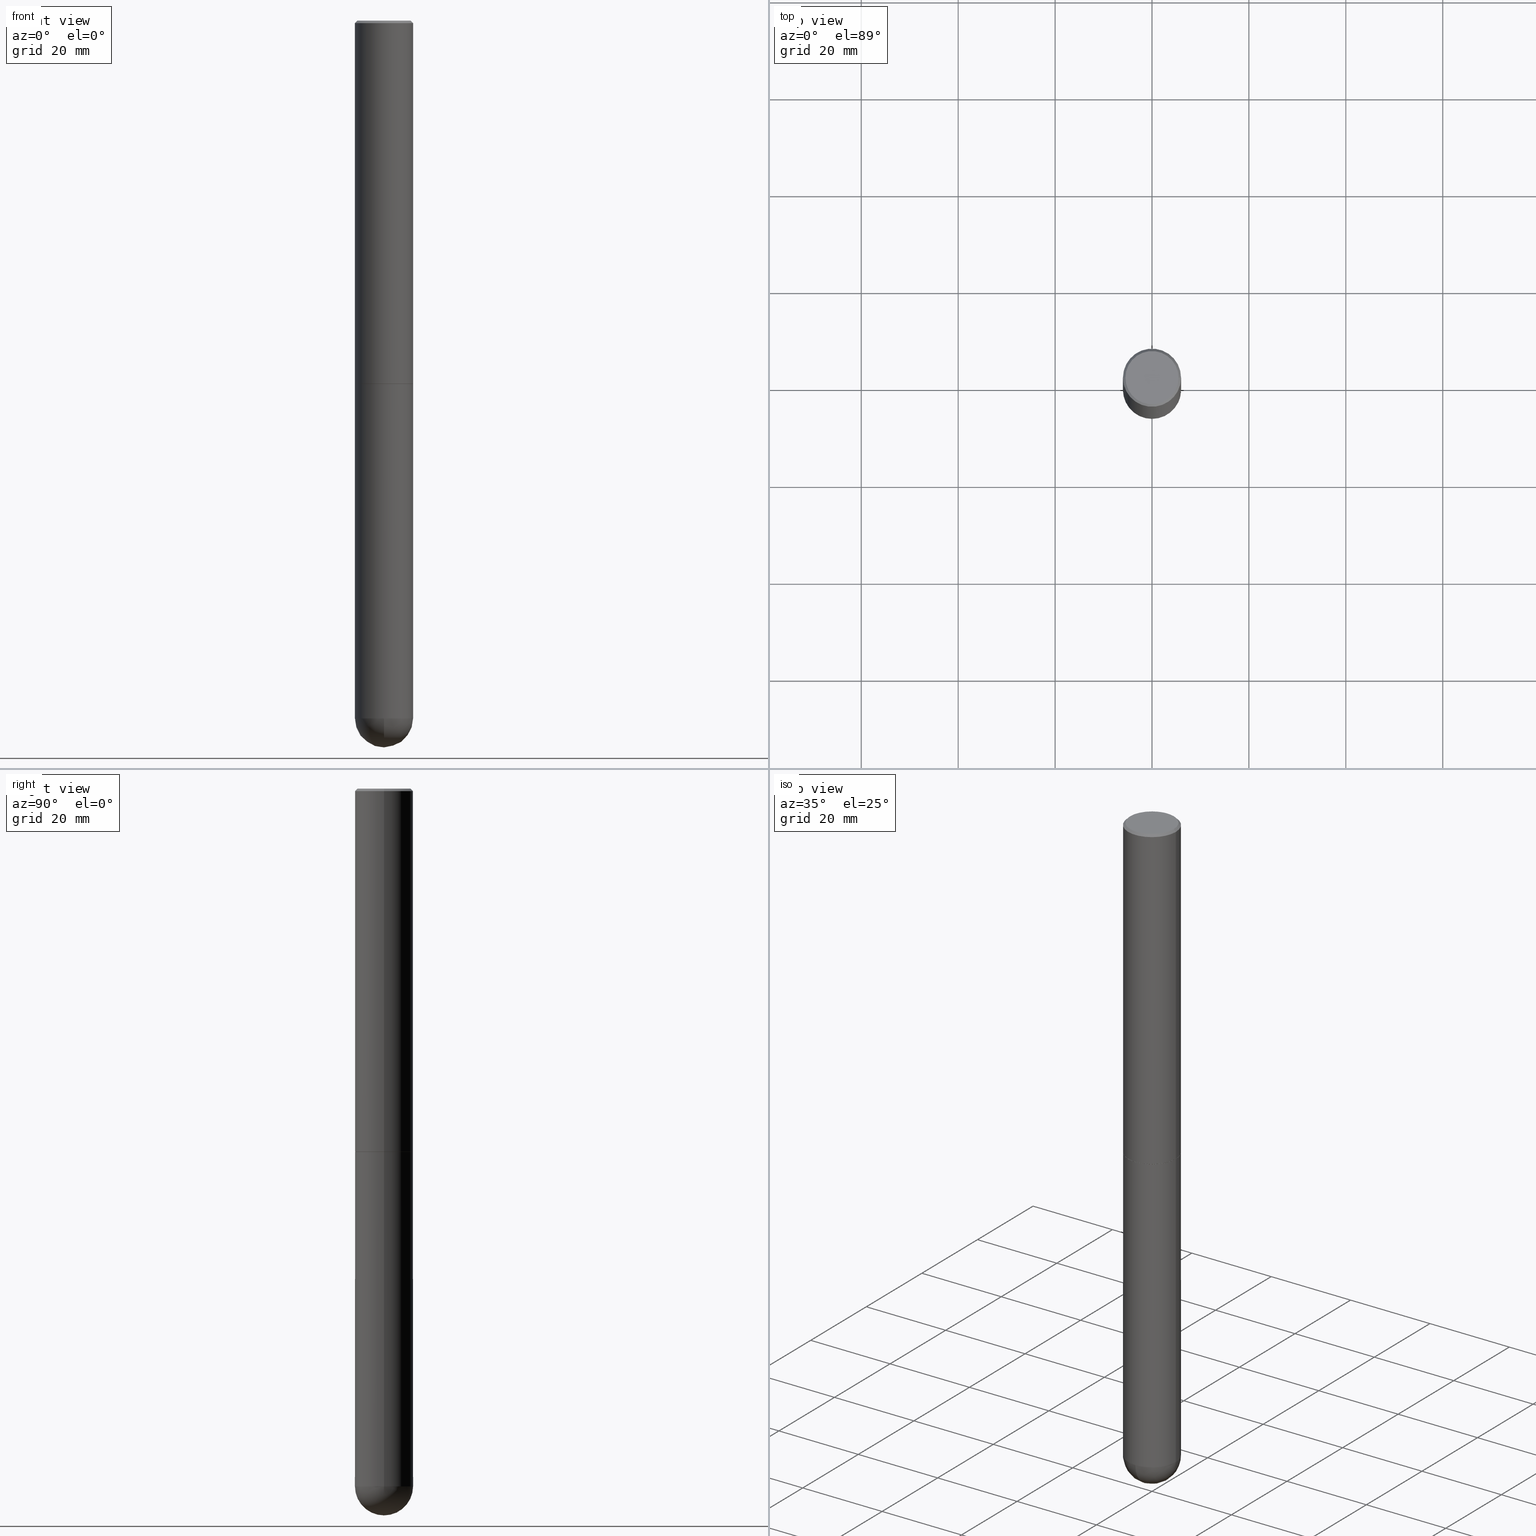
[diagram: canonical four-view strip — front | top / right | iso, engineering-drawing reading convention]
A machine part, canonical four-view strip (front | top / right | iso — engineering-drawing reading convention). The complete STEP part file that produces these views, byte-faithful:
ISO-10303-21;
HEADER;
FILE_DESCRIPTION (( 'STEP AP203' ),
    '1' );
FILE_NAME ('49616.STEP',
    '2024-04-10T12:30:35',
    ( '' ),
    ( '' ),
    'SwSTEP 2.0',
    'SolidWorks 2023',
    '' );
FILE_SCHEMA (( 'CONFIG_CONTROL_DESIGN' ));
ENDSEC;

DATA;
#1 = VERTEX_POINT ( 'NONE', #177 ) ;
#2 = AXIS2_PLACEMENT_3D ( 'NONE', #291, #53, #409 ) ;
#3 = DATE_AND_TIME ( #151, #282 ) ;
#4 = APPROVAL ( #380, 'UNSPECIFIED' ) ;
#5 = CARTESIAN_POINT ( 'NONE',  ( -0.2351999999999999924, -8.632801980346176439E-15, -2.952700000000000102 ) ) ;
#6 = VERTEX_POINT ( 'NONE', #56 ) ;
#7 = LINE ( 'NONE', #372, #240 ) ;
#8 = CIRCLE ( 'NONE', #18, 0.2362000000000002709 ) ;
#9 = DIRECTION ( 'NONE',  ( 2.438088387897960049E-29, -3.491481338843145188E-15, -1.000000000000000000 ) ) ;
#10 = ORIENTED_EDGE ( 'NONE', *, *, #402, .T. ) ;
#11 = LINE ( 'NONE', #252, #88 ) ;
#12 = PLANE ( 'NONE',  #194 ) ;
#13 = COORDINATED_UNIVERSAL_TIME_OFFSET ( 5, 0, .BEHIND. ) ;
#14 = CARTESIAN_POINT ( 'NONE',  ( 1.509716530915769534E-15, 0.2161999999999998368, -6.929648343514316371E-16 ) ) ;
#15 = CIRCLE ( 'NONE', #44, 0.2361999999999999933 ) ;
#16 = APPROVAL_ROLE ( '' ) ;
#17 = DIRECTION ( 'NONE',  ( -2.445468806185136877E-29, 3.491481338843145188E-15, 1.000000000000000000 ) ) ;
#18 = AXIS2_PLACEMENT_3D ( 'NONE', #398, #103, #30 ) ;
#19 = DIRECTION ( 'NONE',  ( -2.445468806185136597E-29, 3.491481338843145583E-15, 1.000000000000000000 ) ) ;
#20 = EDGE_LOOP ( 'NONE', ( #212, #286, #270, #330 ) ) ;
#21 = PRODUCT_DEFINITION_SHAPE ( 'NONE', 'NONE',  #337 ) ;
#22 = AXIS2_PLACEMENT_3D ( 'NONE', #229, #48, #294 ) ;
#23 = CC_DESIGN_PERSON_AND_ORGANIZATION_ASSIGNMENT ( #264, #69, ( #334 ) ) ;
#24 = ORIENTED_EDGE ( 'NONE', *, *, #305, .T. ) ;
#25 = ORIENTED_EDGE ( 'NONE', *, *, #85, .F. ) ;
#26 = COORDINATED_UNIVERSAL_TIME_OFFSET ( 5, 0, .BEHIND. ) ;
#27 = ORIENTED_EDGE ( 'NONE', *, *, #366, .T. ) ;
#28 = ADVANCED_FACE ( 'NONE', ( #233 ), #403, .T. ) ;
#29 = PERSON_AND_ORGANIZATION ( #144, #297 ) ;
#30 = DIRECTION ( 'NONE',  ( 6.982962677686265922E-15, 1.000000000000000000, 0.000000000000000000 ) ) ;
#31 = CIRCLE ( 'NONE', #381, 0.2361999999999999933 ) ;
#32 = CC_DESIGN_APPROVAL ( #4, ( #334 ) ) ;
#33 = ORIENTED_EDGE ( 'NONE', *, *, #401, .F. ) ;
#34 = CARTESIAN_POINT ( 'NONE',  ( -0.2361999999999999933, 1.678301941865356591E-15, -1.161852468318208757E-29 ) ) ;
#35 = DIRECTION ( 'NONE',  ( -2.445468806185136597E-29, 3.491481338843145583E-15, 1.000000000000000000 ) ) ;
#36 = EDGE_LOOP ( 'NONE', ( #303, #308, #91, #52, #58 ) ) ;
#37 = DIRECTION ( 'NONE',  ( 1.000000000000000000, -6.982962677686268288E-15, 0.000000000000000000 ) ) ;
#38 = DIRECTION ( 'NONE',  ( -1.000000000000000000, 6.982962677686265922E-15, -4.883557194083112901E-29 ) ) ;
#39 = CIRCLE ( 'NONE', #299, 0.2361999999999999933 ) ;
#40 = EDGE_CURVE ( 'NONE', #310, #241, #173, .T. ) ;
#41 = ADVANCED_BREP_SHAPE_REPRESENTATION ( '49616', ( #332, #60, #89 ), #353 ) ;
#42 = DATE_AND_TIME ( #361, #341 ) ;
#43 = DIMENSIONAL_EXPONENTS ( 1.000000000000000000, 0.000000000000000000, 0.000000000000000000, 0.000000000000000000, 0.000000000000000000, 0.000000000000000000, 0.000000000000000000 ) ;
#44 = AXIS2_PLACEMENT_3D ( 'NONE', #70, #193, #397 ) ;
#45 = ORIENTED_EDGE ( 'NONE', *, *, #395, .F. ) ;
#46 = SPHERICAL_SURFACE ( 'NONE', #314, 0.2362000000000002709 ) ;
#47 = DIRECTION ( 'NONE',  ( 1.000000000000000000, -6.982962677686263555E-15, 0.000000000000000000 ) ) ;
#48 = DIRECTION ( 'NONE',  ( -2.445468806185136597E-29, 3.491481338843145583E-15, 1.000000000000000000 ) ) ;
#49 = CC_DESIGN_PERSON_AND_ORGANIZATION_ASSIGNMENT ( #111, #168, ( #373 ) ) ;
#50 = DIRECTION ( 'NONE',  ( -2.445468806185136877E-29, 3.491481338843145188E-15, 1.000000000000000000 ) ) ;
#51 = DIRECTION ( 'NONE',  ( 1.000000000000000000, -6.982962677686266711E-15, 4.876176775795936353E-29 ) ) ;
#52 = ORIENTED_EDGE ( 'NONE', *, *, #174, .F. ) ;
#53 = DIRECTION ( 'NONE',  ( -2.445468806185136597E-29, 3.491481338843145583E-15, 1.000000000000000000 ) ) ;
#54 = EDGE_LOOP ( 'NONE', ( #309, #102, #336, #374 ) ) ;
#55 = CARTESIAN_POINT ( 'NONE',  ( 1.353297652499150981E-28, -2.026843752244349558E-14, -5.669299999999999784 ) ) ;
#56 = CARTESIAN_POINT ( 'NONE',  ( -0.2362000000000003264, -3.509515605454725737E-15, -2.951700000000000212 ) ) ;
#57 = PRODUCT ( '49616', '49616', '', ( #235 ) ) ;
#58 = ORIENTED_EDGE ( 'NONE', *, *, #356, .T. ) ;
#59 = CC_DESIGN_PERSON_AND_ORGANIZATION_ASSIGNMENT ( #412, #171, ( #334 ) ) ;
#60 = MANIFOLD_SOLID_BREP ( 'Body-Move/Copy2[2]', #230 ) ;
#61 = ADVANCED_FACE ( 'NONE', ( #377 ), #82, .T. ) ;
#62 = EDGE_LOOP ( 'NONE', ( #33, #224, #120, #166 ) ) ;
#63 = PERSON_AND_ORGANIZATION ( #144, #297 ) ;
#64 = DIRECTION ( 'NONE',  ( 0.7071067811865472397, -7.319954787623254468E-15, -0.7071067811865477948 ) ) ;
#65 = VECTOR ( 'NONE', #262, 39.37007874015748143 ) ;
#66 = APPROVAL_PERSON_ORGANIZATION ( #104, #242, #16 ) ;
#67 = ORIENTED_EDGE ( 'NONE', *, *, #160, .F. ) ;
#68 = CARTESIAN_POINT ( 'NONE',  ( 1.386409630290539494E-28, -1.979425515430344370E-14, -5.669299999999999784 ) ) ;
#69 = PERSON_AND_ORGANIZATION_ROLE ( 'design_supplier' ) ;
#70 = CARTESIAN_POINT ( 'NONE',  ( 1.386409630290539494E-28, -1.979425515430344370E-14, -5.669299999999999784 ) ) ;
#71 = CARTESIAN_POINT ( 'NONE',  ( 0.2361999999999999933, -1.195867273367164996E-14, -2.952700000000000102 ) ) ;
#72 = AXIS2_PLACEMENT_3D ( 'NONE', #370, #407, #170 ) ;
#73 = AXIS2_PLACEMENT_3D ( 'NONE', #253, #255, #400 ) ;
#74 = COORDINATED_UNIVERSAL_TIME_OFFSET ( 5, 0, .BEHIND. ) ;
#75 = EDGE_CURVE ( 'NONE', #97, #6, #295, .T. ) ;
#76 = SECURITY_CLASSIFICATION_LEVEL ( 'unclassified' ) ;
#77 = AXIS2_PLACEMENT_3D ( 'NONE', #130, #312, #191 ) ;
#78 = LOCAL_TIME ( 8, 30, 35.00000000000000000, #74 ) ;
#79 = DIRECTION ( 'NONE',  ( -1.000000000000000000, 7.105427357601001070E-15, -4.926315508542082329E-29 ) ) ;
#80 = ORIENTED_EDGE ( 'NONE', *, *, #402, .F. ) ;
#81 = DIRECTION ( 'NONE',  ( -1.000000000000000000, 6.982962677686265922E-15, -4.883557194083112901E-29 ) ) ;
#82 = CYLINDRICAL_SURFACE ( 'NONE', #350, 0.2362000000000001598 ) ;
#83 = DIRECTION ( 'NONE',  ( -1.000000000000000000, 6.982962677686266711E-15, 0.000000000000000000 ) ) ;
#84 = LOCAL_TIME ( 8, 30, 35.00000000000000000, #13 ) ;
#85 = EDGE_CURVE ( 'NONE', #186, #175, #179, .T. ) ;
#86 = VERTEX_POINT ( 'NONE', #355 ) ;
#87 = APPROVAL_DATE_TIME ( #236, #4 ) ;
#88 = VECTOR ( 'NONE', #133, 39.37007874015748143 ) ;
#89 = AXIS2_PLACEMENT_3D ( 'NONE', #206, #149, #338 ) ;
#90 = CARTESIAN_POINT ( 'NONE',  ( 0.000000000000000000, 0.000000000000000000, 0.000000000000000000 ) ) ;
#91 = ORIENTED_EDGE ( 'NONE', *, *, #227, .F. ) ;
#92 = APPROVAL_ROLE ( '' ) ;
#93 = ORIENTED_EDGE ( 'NONE', *, *, #305, .F. ) ;
#94 = FACE_OUTER_BOUND ( 'NONE', #388, .T. ) ;
#95 = AXIS2_PLACEMENT_3D ( 'NONE', #228, #79, #335 ) ;
#96 = SPHERICAL_SURFACE ( 'NONE', #213, 0.2362000000000002709 ) ;
#97 = VERTEX_POINT ( 'NONE', #5 ) ;
#98 = EDGE_CURVE ( 'NONE', #86, #241, #394, .T. ) ;
#99 = DIRECTION ( 'NONE',  ( -2.445468806185136597E-29, 3.491481338843145583E-15, 1.000000000000000000 ) ) ;
#100 = DIRECTION ( 'NONE',  ( 1.000000000000000000, -6.982962677686265133E-15, 0.000000000000000000 ) ) ;
#101 = LINE ( 'NONE', #214, #266 ) ;
#102 = ORIENTED_EDGE ( 'NONE', *, *, #200, .T. ) ;
#103 = DIRECTION ( 'NONE',  ( 1.000000000000000000, -6.982962677686265922E-15, 4.883557194083112340E-29 ) ) ;
#104 = PERSON_AND_ORGANIZATION ( #144, #297 ) ;
#105 = CARTESIAN_POINT ( 'NONE',  ( -0.2361999999999999933, 1.579546157692633030E-15, -0.02000000000000005246 ) ) ;
#106 = CARTESIAN_POINT ( 'NONE',  ( 0.2362000000000003264, -1.195518125233281169E-14, -2.951700000000000212 ) ) ;
#107 = PRODUCT_RELATED_PRODUCT_CATEGORY ( 'detail', '', ( #57 ) ) ;
#108 = VECTOR ( 'NONE', #231, 39.37007874015748143 ) ;
#109 = LOCAL_TIME ( 8, 30, 35.00000000000000000, #343 ) ;
#110 = CARTESIAN_POINT ( 'NONE',  ( 4.890937612370285420E-31, -6.982962677686308865E-17, -0.02000000000000005246 ) ) ;
#111 = PERSON_AND_ORGANIZATION ( #144, #297 ) ;
#112 = DIRECTION ( 'NONE',  ( 2.445468806185136597E-29, -3.491481338843145583E-15, -1.000000000000000000 ) ) ;
#113 = CARTESIAN_POINT ( 'NONE',  ( 4.890937612370285420E-31, -6.982962677686308865E-17, -0.02000000000000005246 ) ) ;
#114 = FACE_OUTER_BOUND ( 'NONE', #180, .T. ) ;
#115 = CARTESIAN_POINT ( 'NONE',  ( 0.2361999999999999933, -1.690279253850498771E-15, -0.02000000000000005246 ) ) ;
#116 = CARTESIAN_POINT ( 'NONE',  ( 1.386409630290539494E-28, -1.979425515430344370E-14, -5.669299999999999784 ) ) ;
#117 = APPLICATION_PROTOCOL_DEFINITION ( 'international standard', 'config_control_design', 1994, #289 ) ;
#118 = ORIENTED_EDGE ( 'NONE', *, *, #348, .F. ) ;
#119 = EDGE_CURVE ( 'NONE', #186, #346, #345, .T. ) ;
#120 = ORIENTED_EDGE ( 'NONE', *, *, #356, .F. ) ;
#121 = AXIS2_PLACEMENT_3D ( 'NONE', #90, #211, #156 ) ;
#122 = CC_DESIGN_SECURITY_CLASSIFICATION ( #373, ( #334 ) ) ;
#123 = AXIS2_PLACEMENT_3D ( 'NONE', #298, #369, #275 ) ;
#124 = DATE_TIME_ROLE ( 'creation_date' ) ;
#125 = EDGE_CURVE ( 'NONE', #359, #186, #39, .T. ) ;
#126 = ORIENTED_EDGE ( 'NONE', *, *, #160, .T. ) ;
#127 = DATE_AND_TIME ( #181, #84 ) ;
#128 = DIRECTION ( 'NONE',  ( -2.445468806185136597E-29, 3.491481338843145583E-15, 1.000000000000000000 ) ) ;
#129 = ADVANCED_FACE ( 'NONE', ( #182 ), #189, .T. ) ;
#130 = CARTESIAN_POINT ( 'NONE',  ( 1.386409630290539494E-28, -1.979425515430344370E-14, -5.669299999999999784 ) ) ;
#131 = APPROVAL_DATE_TIME ( #42, #242 ) ;
#132 = EDGE_CURVE ( 'NONE', #175, #351, #146, .T. ) ;
#133 = DIRECTION ( 'NONE',  ( -2.445468806185136877E-29, 3.491481338843145188E-15, 1.000000000000000000 ) ) ;
#134 = FACE_OUTER_BOUND ( 'NONE', #408, .T. ) ;
#135 =( NAMED_UNIT ( * ) SI_UNIT ( $, .STERADIAN. ) SOLID_ANGLE_UNIT ( ) );
#136 = CIRCLE ( 'NONE', #72, 0.2361999999999999933 ) ;
#137 = LINE ( 'NONE', #201, #108 ) ;
#138 = EDGE_CURVE ( 'NONE', #226, #359, #8, .T. ) ;
#139 = CARTESIAN_POINT ( 'NONE',  ( 0.2161999999999998368, -1.586759460484351002E-15, 1.237868622129227524E-16 ) ) ;
#140 = AXIS2_PLACEMENT_3D ( 'NONE', #165, #317, #244 ) ;
#141 = DIRECTION ( 'NONE',  ( -2.445468806185136597E-29, 3.491481338843145583E-15, 1.000000000000000000 ) ) ;
#142 = ADVANCED_FACE ( 'NONE', ( #389 ), #360, .T. ) ;
#143 = ORIENTED_EDGE ( 'NONE', *, *, #40, .F. ) ;
#144 = PERSON ( 'UNSPECIFIED', 'UNSPECIFIED', 'UNSPECIFIED', ('UNSPECIFIED'), ('UNSPECIFIED'), ('UNSPECIFIED') ) ;
#145 = CALENDAR_DATE ( 2024, 10, 4 ) ;
#146 = CIRCLE ( 'NONE', #77, 0.2361999999999999933 ) ;
#147 = CC_DESIGN_APPROVAL ( #184, ( #337 ) ) ;
#148 = APPLICATION_PROTOCOL_DEFINITION ( 'international standard', 'config_control_design', 1994, #207 ) ;
#149 = DIRECTION ( 'NONE',  ( 0.000000000000000000, 0.000000000000000000, 1.000000000000000000 ) ) ;
#150 = ORIENTED_EDGE ( 'NONE', *, *, #75, .T. ) ;
#151 = CALENDAR_DATE ( 2024, 10, 4 ) ;
#152 = ADVANCED_FACE ( 'NONE', ( #94 ), #239, .T. ) ;
#153 = VECTOR ( 'NONE', #17, 39.37007874015748143 ) ;
#154 = DIRECTION ( 'NONE',  ( 6.982962677686265922E-15, 1.000000000000000000, -4.626330217890364603E-15 ) ) ;
#155 = ORIENTED_EDGE ( 'NONE', *, *, #366, .F. ) ;
#156 = DIRECTION ( 'NONE',  ( 1.000000000000000000, -6.982962677686266711E-15, 4.876176775795936353E-29 ) ) ;
#157 = UNCERTAINTY_MEASURE_WITH_UNIT (LENGTH_MEASURE( 1.000000000000000082E-05 ), #158, 'distance_accuracy_value', 'NONE');
#158 =( CONVERSION_BASED_UNIT ( 'INCH', #163 ) LENGTH_UNIT ( ) NAMED_UNIT ( #43 ) );
#159 = CARTESIAN_POINT ( 'NONE',  ( 7.220735744022852519E-29, -1.030929694920215502E-14, -2.952700000000000102 ) ) ;
#160 = EDGE_CURVE ( 'NONE', #268, #86, #260, .T. ) ;
#161 = VECTOR ( 'NONE', #208, 39.37007874015748143 ) ;
#162 = CC_DESIGN_PERSON_AND_ORGANIZATION_ASSIGNMENT ( #29, #271, ( #337 ) ) ;
#163 = LENGTH_MEASURE_WITH_UNIT ( LENGTH_MEASURE( 0.02539999999999999897 ), #251 );
#164 = FACE_OUTER_BOUND ( 'NONE', #280, .T. ) ;
#165 = CARTESIAN_POINT ( 'NONE',  ( 7.220735744022852519E-29, -1.030929694920215502E-14, -2.952700000000000102 ) ) ;
#166 = ORIENTED_EDGE ( 'NONE', *, *, #132, .F. ) ;
#167 = VERTEX_POINT ( 'NONE', #71 ) ;
#168 = PERSON_AND_ORGANIZATION_ROLE ( 'classification_officer' ) ;
#169 = FACE_OUTER_BOUND ( 'NONE', #304, .T. ) ;
#170 = DIRECTION ( 'NONE',  ( 1.000000000000000000, -6.982962677686266711E-15, 0.000000000000000000 ) ) ;
#171 = PERSON_AND_ORGANIZATION_ROLE ( 'creator' ) ;
#172 = CARTESIAN_POINT ( 'NONE',  ( -0.2361999999999999933, -1.337347410988744218E-14, -2.952700000000000102 ) ) ;
#173 = CIRCLE ( 'NONE', #22, 0.2361999999999999933 ) ;
#174 = EDGE_CURVE ( 'NONE', #351, #167, #11, .T. ) ;
#175 = VERTEX_POINT ( 'NONE', #399 ) ;
#176 = VERTEX_POINT ( 'NONE', #106 ) ;
#177 = CARTESIAN_POINT ( 'NONE',  ( 0.2351999999999999924, -1.195168977099396553E-14, -2.952700000000000102 ) ) ;
#178 = ORIENTED_EDGE ( 'NONE', *, *, #98, .T. ) ;
#179 = CIRCLE ( 'NONE', #281, 0.2361999999999999933 ) ;
#180 = EDGE_LOOP ( 'NONE', ( #24, #126 ) ) ;
#181 = CALENDAR_DATE ( 2024, 10, 4 ) ;
#182 = FACE_OUTER_BOUND ( 'NONE', #331, .T. ) ;
#183 = DESIGN_CONTEXT ( 'detailed design', #207, 'design' ) ;
#184 = APPROVAL ( #301, 'UNSPECIFIED' ) ;
#185 = AXIS2_PLACEMENT_3D ( 'NONE', #333, #375, #404 ) ;
#186 = VERTEX_POINT ( 'NONE', #284 ) ;
#187 = ORIENTED_EDGE ( 'NONE', *, *, #384, .T. ) ;
#188 = CARTESIAN_POINT ( 'NONE',  ( 7.220735744022852519E-29, -1.030929694920215502E-14, -2.952700000000000102 ) ) ;
#189 = CYLINDRICAL_SURFACE ( 'NONE', #247, 0.2361999999999999933 ) ;
#190 = ORIENTED_EDGE ( 'NONE', *, *, #132, .T. ) ;
#191 = DIRECTION ( 'NONE',  ( 1.000000000000000000, -6.982962677686273021E-15, 0.000000000000000000 ) ) ;
#192 = CALENDAR_DATE ( 2024, 10, 4 ) ;
#193 = DIRECTION ( 'NONE',  ( -2.445468806185136597E-29, 3.491481338843145583E-15, 1.000000000000000000 ) ) ;
#194 = AXIS2_PLACEMENT_3D ( 'NONE', #324, #9, #250 ) ;
#195 = CC_DESIGN_DATE_AND_TIME_ASSIGNMENT ( #368, #327, ( #373 ) ) ;
#196 = COORDINATED_UNIVERSAL_TIME_OFFSET ( 5, 0, .BEHIND. ) ;
#197 = AXIS2_PLACEMENT_3D ( 'NONE', #188, #209, #278 ) ;
#198 = FACE_OUTER_BOUND ( 'NONE', #62, .T. ) ;
#199 = ADVANCED_FACE ( 'NONE', ( #164 ), #283, .T. ) ;
#200 = EDGE_CURVE ( 'NONE', #97, #1, #325, .T. ) ;
#201 = CARTESIAN_POINT ( 'NONE',  ( 0.2351999999999999924, -1.195168977099396553E-14, -2.952700000000000102 ) ) ;
#202 = CARTESIAN_POINT ( 'NONE',  ( 7.220735744022852519E-29, -1.030929694920215502E-14, -2.952700000000000102 ) ) ;
#203 = AXIS2_PLACEMENT_3D ( 'NONE', #14, #339, #378 ) ;
#204 = ORIENTED_EDGE ( 'NONE', *, *, #384, .F. ) ;
#205 = APPROVAL_ROLE ( '' ) ;
#206 = CARTESIAN_POINT ( 'NONE',  ( 0.000000000000000000, 0.000000000000000000, 0.000000000000000000 ) ) ;
#207 = APPLICATION_CONTEXT ( 'configuration controlled 3d designs of mechanical parts and assemblies' ) ;
#208 = DIRECTION ( 'NONE',  ( -0.7071067811865472397, 2.468850131082253905E-15, -0.7071067811865477948 ) ) ;
#209 = DIRECTION ( 'NONE',  ( -2.445468806185136597E-29, 3.491481338843145583E-15, 1.000000000000000000 ) ) ;
#210 = CC_DESIGN_PERSON_AND_ORGANIZATION_ASSIGNMENT ( #261, #383, ( #57 ) ) ;
#211 = DIRECTION ( 'NONE',  ( -2.445468806185136597E-29, 3.491481338843145583E-15, 1.000000000000000000 ) ) ;
#212 = ORIENTED_EDGE ( 'NONE', *, *, #321, .F. ) ;
#213 = AXIS2_PLACEMENT_3D ( 'NONE', #285, #38, #154 ) ;
#214 = CARTESIAN_POINT ( 'NONE',  ( 0.2361999999999999933, -1.690279253850498771E-15, -0.02000000000000005246 ) ) ;
#215 = CARTESIAN_POINT ( 'NONE',  ( 7.220735744022852519E-29, -1.030929694920215502E-14, -2.952700000000000102 ) ) ;
#216 = CARTESIAN_POINT ( 'NONE',  ( -0.2361999999999999933, 1.579546157692633030E-15, -0.02000000000000005246 ) ) ;
#217 = DIRECTION ( 'NONE',  ( -2.445468806185136597E-29, 3.491481338843145583E-15, 1.000000000000000000 ) ) ;
#218 = CARTESIAN_POINT ( 'NONE',  ( 1.649375784469633984E-15, 0.2361999999999800925, -5.669300000000000672 ) ) ;
#219 = ADVANCED_FACE ( 'NONE', ( #245 ), #96, .T. ) ;
#220 = PLANE ( 'NONE',  #73 ) ;
#221 = AXIS2_PLACEMENT_3D ( 'NONE', #313, #35, #357 ) ;
#222 = AXIS2_PLACEMENT_3D ( 'NONE', #257, #376, #47 ) ;
#223 = CLOSED_SHELL ( 'NONE', ( #142, #219, #306, #237, #129 ) ) ;
#224 = ORIENTED_EDGE ( 'NONE', *, *, #138, .T. ) ;
#225 = DIRECTION ( 'NONE',  ( 2.445468806185136597E-29, -3.491481338843145583E-15, -1.000000000000000000 ) ) ;
#226 = VERTEX_POINT ( 'NONE', #390 ) ;
#227 = EDGE_CURVE ( 'NONE', #167, #346, #367, .T. ) ;
#228 = CARTESIAN_POINT ( 'NONE',  ( 1.353297652499150981E-28, -2.026843752244349558E-14, -5.669299999999999784 ) ) ;
#229 = CARTESIAN_POINT ( 'NONE',  ( 4.890937612370285420E-31, -6.982962677686308865E-17, -0.02000000000000005246 ) ) ;
#230 = CLOSED_SHELL ( 'NONE', ( #152, #199, #254, #28, #61, #405, #249, #328 ) ) ;
#231 = DIRECTION ( 'NONE',  ( 0.7071067811867406405, -2.468850131084279700E-15, 0.7071067811863543939 ) ) ;
#232 = PLANE ( 'NONE',  #203 ) ;
#233 = FACE_OUTER_BOUND ( 'NONE', #396, .T. ) ;
#234 = AXIS2_PLACEMENT_3D ( 'NONE', #113, #112, #379 ) ;
#235 = MECHANICAL_CONTEXT ( 'NONE', #289, 'mechanical' ) ;
#236 = DATE_AND_TIME ( #145, #109 ) ;
#237 = ADVANCED_FACE ( 'NONE', ( #362 ), #12, .F. ) ;
#238 = ORIENTED_EDGE ( 'NONE', *, *, #348, .T. ) ;
#239 = CONICAL_SURFACE ( 'NONE', #307, 0.2351999999999999924, 0.7853981633977213939 ) ;
#240 = VECTOR ( 'NONE', #50, 39.37007874015748143 ) ;
#241 = VERTEX_POINT ( 'NONE', #105 ) ;
#242 = APPROVAL ( #290, 'UNSPECIFIED' ) ;
#243 = DIRECTION ( 'NONE',  ( 1.000000000000000000, -6.982962677686273021E-15, 0.000000000000000000 ) ) ;
#244 = DIRECTION ( 'NONE',  ( 1.000000000000000000, -6.982962677686268288E-15, 0.000000000000000000 ) ) ;
#245 = FACE_OUTER_BOUND ( 'NONE', #246, .T. ) ;
#246 = EDGE_LOOP ( 'NONE', ( #358, #344, #25, #387 ) ) ;
#247 = AXIS2_PLACEMENT_3D ( 'NONE', #323, #217, #277 ) ;
#248 = DIRECTION ( 'NONE',  ( -2.445468806185136597E-29, 3.491481338843145583E-15, 1.000000000000000000 ) ) ;
#249 = ADVANCED_FACE ( 'NONE', ( #134 ), #220, .F. ) ;
#250 = DIRECTION ( 'NONE',  ( -1.000000000000000000, 6.982962677686265922E-15, -4.876176775795935793E-29 ) ) ;
#251 =( LENGTH_UNIT ( ) NAMED_UNIT ( * ) SI_UNIT ( $, .METRE. ) );
#252 = CARTESIAN_POINT ( 'NONE',  ( 0.2361999999999999933, -1.649375784469496131E-15, 1.151752954443000088E-29 ) ) ;
#253 = CARTESIAN_POINT ( 'NONE',  ( 7.220735744022852519E-29, -1.030929694920215502E-14, -2.952700000000000102 ) ) ;
#254 = ADVANCED_FACE ( 'NONE', ( #169 ), #296, .T. ) ;
#255 = DIRECTION ( 'NONE',  ( -2.438088387897960049E-29, 3.491481338843145188E-15, 1.000000000000000000 ) ) ;
#256 = DIRECTION ( 'NONE',  ( 6.982962677686265922E-15, 1.000000000000000000, -4.626330217890364603E-15 ) ) ;
#257 = CARTESIAN_POINT ( 'NONE',  ( 7.218290275216666916E-29, -1.030580546786331359E-14, -2.951700000000000212 ) ) ;
#258 = ORIENTED_EDGE ( 'NONE', *, *, #321, .T. ) ;
#259 = EDGE_CURVE ( 'NONE', #1, #176, #137, .T. ) ;
#260 = CIRCLE ( 'NONE', #410, 0.2161999999999998368 ) ;
#261 = PERSON_AND_ORGANIZATION ( #144, #297 ) ;
#262 = DIRECTION ( 'NONE',  ( -0.7071067811867406405, 7.493145998871051513E-15, 0.7071067811863543939 ) ) ;
#263 = DIRECTION ( 'NONE',  ( 1.000000000000000000, -6.982962677686265133E-15, 0.000000000000000000 ) ) ;
#264 = PERSON_AND_ORGANIZATION ( #144, #297 ) ;
#265 = EDGE_CURVE ( 'NONE', #6, #176, #340, .T. ) ;
#266 = VECTOR ( 'NONE', #64, 39.37007874015748143 ) ;
#267 = CIRCLE ( 'NONE', #95, 0.2362000000000002709 ) ;
#268 = VERTEX_POINT ( 'NONE', #139 ) ;
#269 = PERSON_AND_ORGANIZATION ( #144, #297 ) ;
#270 = ORIENTED_EDGE ( 'NONE', *, *, #395, .T. ) ;
#271 = PERSON_AND_ORGANIZATION_ROLE ( 'creator' ) ;
#272 = ORIENTED_EDGE ( 'NONE', *, *, #259, .F. ) ;
#273 = AXIS2_PLACEMENT_3D ( 'NONE', #110, #225, #83 ) ;
#274 = CIRCLE ( 'NONE', #222, 0.2362000000000003264 ) ;
#275 = DIRECTION ( 'NONE',  ( 1.000000000000000000, -6.982962677686263555E-15, 0.000000000000000000 ) ) ;
#276 = ORIENTED_EDGE ( 'NONE', *, *, #98, .F. ) ;
#277 = DIRECTION ( 'NONE',  ( 1.000000000000000000, -6.982962677686266711E-15, 4.876176775795936353E-29 ) ) ;
#278 = DIRECTION ( 'NONE',  ( 1.000000000000000000, -6.982962677686268288E-15, 0.000000000000000000 ) ) ;
#279 = CARTESIAN_POINT ( 'NONE',  ( -3.027169101572137302E-45, 4.321995194103296744E-31, 1.237868622129119302E-16 ) ) ;
#280 = EDGE_LOOP ( 'NONE', ( #10, #258, #143, #45 ) ) ;
#281 = AXIS2_PLACEMENT_3D ( 'NONE', #116, #311, #243 ) ;
#282 = LOCAL_TIME ( 8, 30, 35.00000000000000000, #26 ) ;
#283 = CYLINDRICAL_SURFACE ( 'NONE', #221, 0.2362000000000001598 ) ;
#284 = CARTESIAN_POINT ( 'NONE',  ( -0.2361999999999999933, -1.337347410988744691E-14, -5.669299999999999784 ) ) ;
#285 = CARTESIAN_POINT ( 'NONE',  ( 1.353297652499150981E-28, -2.026843752244349558E-14, -5.669299999999999784 ) ) ;
#286 = ORIENTED_EDGE ( 'NONE', *, *, #265, .T. ) ;
#287 = FACE_OUTER_BOUND ( 'NONE', #54, .T. ) ;
#288 = VECTOR ( 'NONE', #349, 39.37007874015748143 ) ;
#289 = APPLICATION_CONTEXT ( 'configuration controlled 3d designs of mechanical parts and assemblies' ) ;
#290 = APPROVAL_STATUS ( 'not_yet_approved' ) ;
#291 = CARTESIAN_POINT ( 'NONE',  ( 7.220735744022852519E-29, -1.030929694920215502E-14, -2.952700000000000102 ) ) ;
#292 = EDGE_LOOP ( 'NONE', ( #382, #238 ) ) ;
#293 = LINE ( 'NONE', #342, #153 ) ;
#294 = DIRECTION ( 'NONE',  ( 1.000000000000000000, -6.982962677686266711E-15, 0.000000000000000000 ) ) ;
#295 = LINE ( 'NONE', #406, #65 ) ;
#296 = CONICAL_SURFACE ( 'NONE', #273, 0.2361999999999999933, 0.7853981633974479459 ) ;
#297 = ORGANIZATION ( 'UNSPECIFIED', 'UNSPECIFIED', '' ) ;
#298 = CARTESIAN_POINT ( 'NONE',  ( 7.218290275216666916E-29, -1.030580546786331359E-14, -2.951700000000000212 ) ) ;
#299 = AXIS2_PLACEMENT_3D ( 'NONE', #68, #248, #316 ) ;
#300 = ORIENTED_EDGE ( 'NONE', *, *, #40, .T. ) ;
#301 = APPROVAL_STATUS ( 'not_yet_approved' ) ;
#302 = CARTESIAN_POINT ( 'NONE',  ( 0.000000000000000000, 0.000000000000000000, 0.000000000000000000 ) ) ;
#303 = ORIENTED_EDGE ( 'NONE', *, *, #125, .T. ) ;
#304 = EDGE_LOOP ( 'NONE', ( #67, #27, #300, #276 ) ) ;
#305 = EDGE_CURVE ( 'NONE', #86, #268, #371, .T. ) ;
#306 = ADVANCED_FACE ( 'NONE', ( #198 ), #46, .T. ) ;
#307 = AXIS2_PLACEMENT_3D ( 'NONE', #215, #320, #37 ) ;
#308 = ORIENTED_EDGE ( 'NONE', *, *, #119, .T. ) ;
#309 = ORIENTED_EDGE ( 'NONE', *, *, #75, .F. ) ;
#310 = VERTEX_POINT ( 'NONE', #115 ) ;
#311 = DIRECTION ( 'NONE',  ( -2.445468806185136597E-29, 3.491481338843145583E-15, 1.000000000000000000 ) ) ;
#312 = DIRECTION ( 'NONE',  ( -2.445468806185136597E-29, 3.491481338843145583E-15, 1.000000000000000000 ) ) ;
#313 = CARTESIAN_POINT ( 'NONE',  ( 0.000000000000000000, 0.000000000000000000, 0.000000000000000000 ) ) ;
#314 = AXIS2_PLACEMENT_3D ( 'NONE', #55, #81, #256 ) ;
#315 = APPROVAL_PERSON_ORGANIZATION ( #269, #184, #92 ) ;
#316 = DIRECTION ( 'NONE',  ( 1.000000000000000000, -6.982962677686273021E-15, 0.000000000000000000 ) ) ;
#317 = DIRECTION ( 'NONE',  ( -2.445468806185136597E-29, 3.491481338843145583E-15, 1.000000000000000000 ) ) ;
#318 = ORIENTED_EDGE ( 'NONE', *, *, #319, .T. ) ;
#319 = EDGE_CURVE ( 'NONE', #241, #310, #136, .T. ) ;
#320 = DIRECTION ( 'NONE',  ( -2.445468806185136597E-29, 3.491481338843145583E-15, 1.000000000000000000 ) ) ;
#321 = EDGE_CURVE ( 'NONE', #6, #241, #293, .T. ) ;
#322 = ORIENTED_EDGE ( 'NONE', *, *, #85, .T. ) ;
#323 = CARTESIAN_POINT ( 'NONE',  ( 0.000000000000000000, 0.000000000000000000, 0.000000000000000000 ) ) ;
#324 = CARTESIAN_POINT ( 'NONE',  ( 1.649375784469568312E-15, 0.2361999999999896960, -2.952700000000000990 ) ) ;
#325 = CIRCLE ( 'NONE', #140, 0.2351999999999999924 ) ;
#326 = CONICAL_SURFACE ( 'NONE', #2, 0.2351999999999999924, 0.7853981633977213939 ) ;
#327 = DATE_TIME_ROLE ( 'classification_date' ) ;
#328 = ADVANCED_FACE ( 'NONE', ( #114 ), #232, .F. ) ;
#329 =( NAMED_UNIT ( * ) PLANE_ANGLE_UNIT ( ) SI_UNIT ( $, .RADIAN. ) );
#330 = ORIENTED_EDGE ( 'NONE', *, *, #319, .F. ) ;
#331 = EDGE_LOOP ( 'NONE', ( #411, #322, #190, #392, #118 ) ) ;
#332 = MANIFOLD_SOLID_BREP ( 'Body-Move/Copy2[1]', #223 ) ;
#333 = CARTESIAN_POINT ( 'NONE',  ( -3.027169101572137302E-45, 4.321995194103296744E-31, 1.237868622129119302E-16 ) ) ;
#334 = PRODUCT_DEFINITION_FORMATION_WITH_SPECIFIED_SOURCE ( 'ANY', '', #57, .NOT_KNOWN. ) ;
#335 = DIRECTION ( 'NONE',  ( -7.105427357601001070E-15, -1.000000000000000000, 0.000000000000000000 ) ) ;
#336 = ORIENTED_EDGE ( 'NONE', *, *, #259, .T. ) ;
#337 = PRODUCT_DEFINITION ( 'UNKNOWN', '', #334, #183 ) ;
#338 = DIRECTION ( 'NONE',  ( 1.000000000000000000, 0.000000000000000000, 0.000000000000000000 ) ) ;
#339 = DIRECTION ( 'NONE',  ( 2.438088387897960049E-29, -3.491481338843145188E-15, -1.000000000000000000 ) ) ;
#340 = CIRCLE ( 'NONE', #123, 0.2362000000000003264 ) ;
#341 = LOCAL_TIME ( 8, 30, 35.00000000000000000, #196 ) ;
#342 = CARTESIAN_POINT ( 'NONE',  ( -0.2362000000000001598, 1.678301941865357775E-15, -1.161852468318209598E-29 ) ) ;
#343 = COORDINATED_UNIVERSAL_TIME_OFFSET ( 5, 0, .BEHIND. ) ;
#344 = ORIENTED_EDGE ( 'NONE', *, *, #401, .T. ) ;
#345 = LINE ( 'NONE', #34, #288 ) ;
#346 = VERTEX_POINT ( 'NONE', #172 ) ;
#347 = ORIENTED_EDGE ( 'NONE', *, *, #200, .F. ) ;
#348 = EDGE_CURVE ( 'NONE', #346, #167, #31, .T. ) ;
#349 = DIRECTION ( 'NONE',  ( -2.445468806185136877E-29, 3.491481338843145188E-15, 1.000000000000000000 ) ) ;
#350 = AXIS2_PLACEMENT_3D ( 'NONE', #302, #141, #51 ) ;
#351 = VERTEX_POINT ( 'NONE', #363 ) ;
#352 = CC_DESIGN_DATE_AND_TIME_ASSIGNMENT ( #3, #124, ( #337 ) ) ;
#353 =( GEOMETRIC_REPRESENTATION_CONTEXT ( 3 ) GLOBAL_UNCERTAINTY_ASSIGNED_CONTEXT ( ( #157 ) ) GLOBAL_UNIT_ASSIGNED_CONTEXT ( ( #158, #329, #135 ) ) REPRESENTATION_CONTEXT ( 'NONE', 'WORKASPACE' ) );
#354 = APPROVAL_DATE_TIME ( #127, #184 ) ;
#355 = CARTESIAN_POINT ( 'NONE',  ( -0.2161999999999998368, 1.544631344304201775E-15, 1.237868622129012559E-16 ) ) ;
#356 = EDGE_CURVE ( 'NONE', #351, #359, #15, .T. ) ;
#357 = DIRECTION ( 'NONE',  ( 1.000000000000000000, -6.982962677686266711E-15, 4.876176775795936353E-29 ) ) ;
#358 = ORIENTED_EDGE ( 'NONE', *, *, #138, .F. ) ;
#359 = VERTEX_POINT ( 'NONE', #218 ) ;
#360 = CYLINDRICAL_SURFACE ( 'NONE', #121, 0.2361999999999999933 ) ;
#361 = CALENDAR_DATE ( 2024, 10, 4 ) ;
#362 = FACE_OUTER_BOUND ( 'NONE', #292, .T. ) ;
#363 = CARTESIAN_POINT ( 'NONE',  ( 0.2361999999999999933, -1.670115183622230141E-14, -5.669299999999999784 ) ) ;
#364 = DIRECTION ( 'NONE',  ( 1.000000000000000000, -6.982962677686266711E-15, 4.874901889287150056E-29 ) ) ;
#365 = SHAPE_DEFINITION_REPRESENTATION ( #21, #41 ) ;
#366 = EDGE_CURVE ( 'NONE', #268, #310, #101, .T. ) ;
#367 = CIRCLE ( 'NONE', #385, 0.2361999999999999933 ) ;
#368 = DATE_AND_TIME ( #192, #78 ) ;
#369 = DIRECTION ( 'NONE',  ( -2.445468806185136597E-29, 3.491481338843145583E-15, 1.000000000000000000 ) ) ;
#370 = CARTESIAN_POINT ( 'NONE',  ( 4.890937612370285420E-31, -6.982962677686308865E-17, -0.02000000000000005246 ) ) ;
#371 = CIRCLE ( 'NONE', #185, 0.2161999999999998368 ) ;
#372 = CARTESIAN_POINT ( 'NONE',  ( 0.2362000000000001598, -1.649375784469497314E-15, 1.151752954443000929E-29 ) ) ;
#373 = SECURITY_CLASSIFICATION ( '', '', #76 ) ;
#374 = ORIENTED_EDGE ( 'NONE', *, *, #265, .F. ) ;
#375 = DIRECTION ( 'NONE',  ( -2.445468806185136597E-29, 3.491481338843145583E-15, 1.000000000000000000 ) ) ;
#376 = DIRECTION ( 'NONE',  ( -2.445468806185136597E-29, 3.491481338843145583E-15, 1.000000000000000000 ) ) ;
#377 = FACE_OUTER_BOUND ( 'NONE', #20, .T. ) ;
#378 = DIRECTION ( 'NONE',  ( -1.000000000000000000, 6.982962677686265922E-15, -4.876176775795935793E-29 ) ) ;
#379 = DIRECTION ( 'NONE',  ( -1.000000000000000000, 6.982962677686266711E-15, 0.000000000000000000 ) ) ;
#380 = APPROVAL_STATUS ( 'not_yet_approved' ) ;
#381 = AXIS2_PLACEMENT_3D ( 'NONE', #202, #19, #263 ) ;
#382 = ORIENTED_EDGE ( 'NONE', *, *, #227, .T. ) ;
#383 = PERSON_AND_ORGANIZATION_ROLE ( 'design_owner' ) ;
#384 = EDGE_CURVE ( 'NONE', #1, #97, #391, .T. ) ;
#385 = AXIS2_PLACEMENT_3D ( 'NONE', #159, #128, #100 ) ;
#386 = CC_DESIGN_APPROVAL ( #242, ( #373 ) ) ;
#387 = ORIENTED_EDGE ( 'NONE', *, *, #125, .F. ) ;
#388 = EDGE_LOOP ( 'NONE', ( #187, #150, #80, #272 ) ) ;
#389 = FACE_OUTER_BOUND ( 'NONE', #36, .T. ) ;
#390 = CARTESIAN_POINT ( 'NONE',  ( 1.412069577088764835E-28, -2.107866233598031943E-14, -5.905499999999999972 ) ) ;
#391 = CIRCLE ( 'NONE', #197, 0.2351999999999999924 ) ;
#392 = ORIENTED_EDGE ( 'NONE', *, *, #174, .T. ) ;
#393 = APPROVAL_PERSON_ORGANIZATION ( #63, #4, #205 ) ;
#394 = LINE ( 'NONE', #216, #161 ) ;
#395 = EDGE_CURVE ( 'NONE', #176, #310, #7, .T. ) ;
#396 = EDGE_LOOP ( 'NONE', ( #155, #93, #178, #318 ) ) ;
#397 = DIRECTION ( 'NONE',  ( 1.000000000000000000, -6.982962677686273021E-15, 0.000000000000000000 ) ) ;
#398 = CARTESIAN_POINT ( 'NONE',  ( 1.353297652499150981E-28, -2.026843752244349558E-14, -5.669299999999999784 ) ) ;
#399 = CARTESIAN_POINT ( 'NONE',  ( -1.678301941865220316E-15, -0.2362000000000201716, -5.669299999999998896 ) ) ;
#400 = DIRECTION ( 'NONE',  ( 1.000000000000000000, -6.982962677686265922E-15, 4.876176775795935793E-29 ) ) ;
#401 = EDGE_CURVE ( 'NONE', #226, #175, #267, .T. ) ;
#402 = EDGE_CURVE ( 'NONE', #176, #6, #274, .T. ) ;
#403 = CONICAL_SURFACE ( 'NONE', #234, 0.2361999999999999933, 0.7853981633974479459 ) ;
#404 = DIRECTION ( 'NONE',  ( 1.000000000000000000, -6.982962677686266711E-15, 4.874901889287150056E-29 ) ) ;
#405 = ADVANCED_FACE ( 'NONE', ( #287 ), #326, .T. ) ;
#406 = CARTESIAN_POINT ( 'NONE',  ( -0.2351999999999999924, -8.638100434694398841E-15, -2.952700000000000102 ) ) ;
#407 = DIRECTION ( 'NONE',  ( -2.445468806185136597E-29, 3.491481338843145583E-15, 1.000000000000000000 ) ) ;
#408 = EDGE_LOOP ( 'NONE', ( #204, #347 ) ) ;
#409 = DIRECTION ( 'NONE',  ( 1.000000000000000000, -6.982962677686268288E-15, 0.000000000000000000 ) ) ;
#410 = AXIS2_PLACEMENT_3D ( 'NONE', #279, #99, #364 ) ;
#411 = ORIENTED_EDGE ( 'NONE', *, *, #119, .F. ) ;
#412 = PERSON_AND_ORGANIZATION ( #144, #297 ) ;
ENDSEC;
END-ISO-10303-21;
